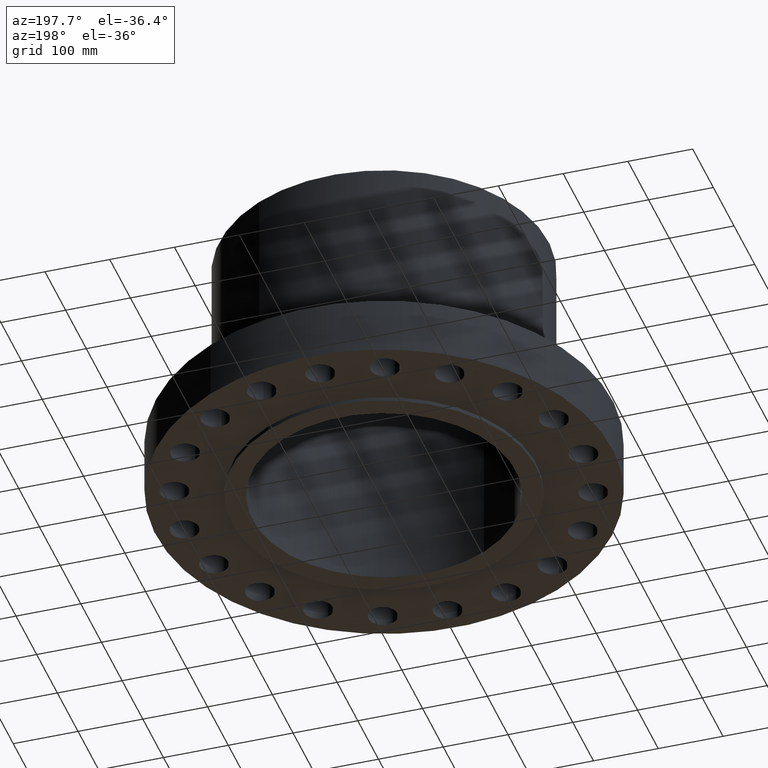
[diagram: clean part render]
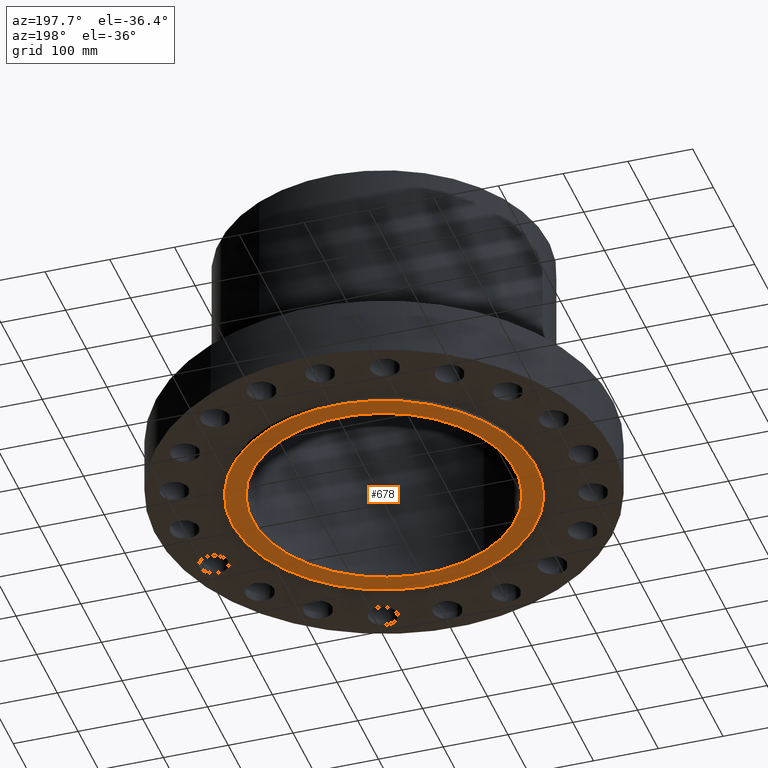
[diagram: same view with one face highlighted and labeled with its STEP entity id]
A machine part, auxiliary view. The second image highlights one B-rep face of the part: STEP entity #678.
In plain terms, the highlighted planar face has unit normal (0, 0, -1).
Its self-contained STEP definition (entity closure, byte-faithful):
#622=AXIS2_PLACEMENT_3D('Circle Axis2P3D',#620,#621,$) ;
#641=AXIS2_PLACEMENT_3D('Circle Axis2P3D',#639,#640,$) ;
#654=AXIS2_PLACEMENT_3D('Plane Axis2P3D',#651,#652,#653) ;
#658=AXIS2_PLACEMENT_3D('Circle Axis2P3D',#656,#657,$) ;
#667=AXIS2_PLACEMENT_3D('Circle Axis2P3D',#665,#666,$) ;
#617=CARTESIAN_POINT('Vertex',(3.83540430885,7.02066049515,-0.250000000001)) ;
#620=CARTESIAN_POINT('Axis2P3D Location',(0.,0.,-0.250000000001)) ;
#624=CARTESIAN_POINT('Vertex',(-3.83540430885,-7.02066049515,-0.250000000001)) ;
#639=CARTESIAN_POINT('Axis2P3D Location',(0.,0.,-0.250000000001)) ;
#651=CARTESIAN_POINT('Axis2P3D Location',(0.,8.00000000003,-0.250000000001)) ;
#656=CARTESIAN_POINT('Axis2P3D Location',(0.,0.,-0.250000000001)) ;
#660=CARTESIAN_POINT('Vertex',(-4.43468623211,-8.11763869752,-0.250000000001)) ;
#662=CARTESIAN_POINT('Vertex',(4.43468623211,8.11763869752,-0.250000000001)) ;
#665=CARTESIAN_POINT('Axis2P3D Location',(0.,0.,-0.250000000001)) ;
#621=DIRECTION('Axis2P3D Direction',(0.,0.,-0.0393700787402)) ;
#640=DIRECTION('Axis2P3D Direction',(0.,0.,-0.0393700787402)) ;
#652=DIRECTION('Axis2P3D Direction',(0.,0.,-0.0393700787402)) ;
#653=DIRECTION('Axis2P3D XDirection',(0.0393700787402,0.,0.)) ;
#657=DIRECTION('Axis2P3D Direction',(0.,0.,-0.0393700787402)) ;
#666=DIRECTION('Axis2P3D Direction',(0.,0.,-0.0393700787402)) ;
#671=ORIENTED_EDGE('',*,*,#664,.T.) ;
#672=ORIENTED_EDGE('',*,*,#669,.T.) ;
#675=ORIENTED_EDGE('',*,*,#626,.F.) ;
#676=ORIENTED_EDGE('',*,*,#643,.F.) ;
#677=FACE_BOUND('',#674,.T.) ;
#678=ADVANCED_FACE('PartBody',(#673,#677),#655,.T.) ;
#623=CIRCLE('generated circle',#622,8.00000000003) ;
#642=CIRCLE('generated circle',#641,8.00000000003) ;
#659=CIRCLE('generated circle',#658,9.25000000004) ;
#668=CIRCLE('generated circle',#667,9.25000000004) ;
#626=EDGE_CURVE('',#618,#625,#623,.T.) ;
#643=EDGE_CURVE('',#625,#618,#642,.T.) ;
#664=EDGE_CURVE('',#661,#663,#659,.T.) ;
#669=EDGE_CURVE('',#663,#661,#668,.T.) ;
#670=EDGE_LOOP('',(#671,#672)) ;
#674=EDGE_LOOP('',(#675,#676)) ;
#673=FACE_OUTER_BOUND('',#670,.T.) ;
#655=PLANE('',#654) ;
#618=VERTEX_POINT('',#617) ;
#625=VERTEX_POINT('',#624) ;
#661=VERTEX_POINT('',#660) ;
#663=VERTEX_POINT('',#662) ;